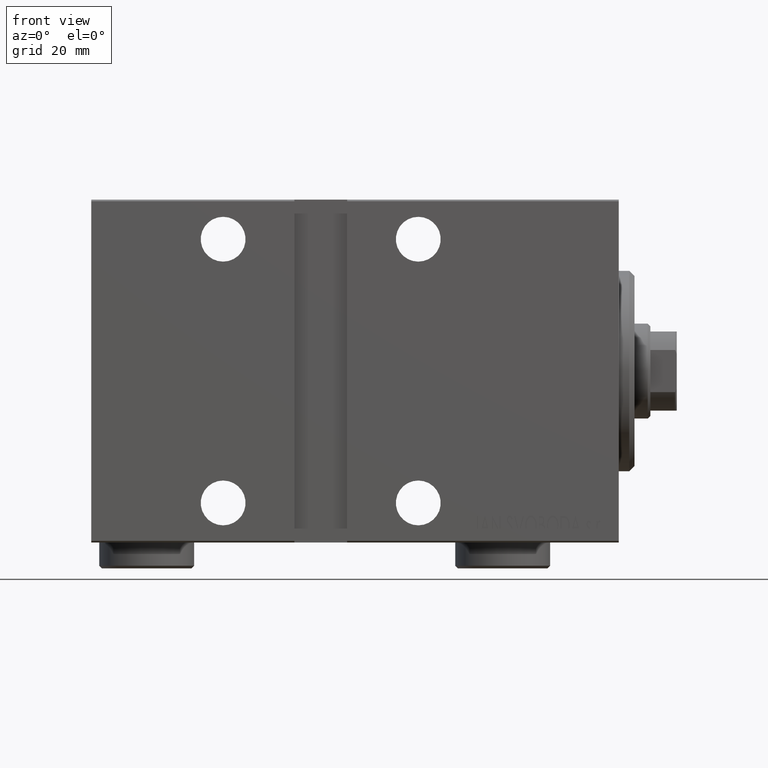
[diagram: clean part render]
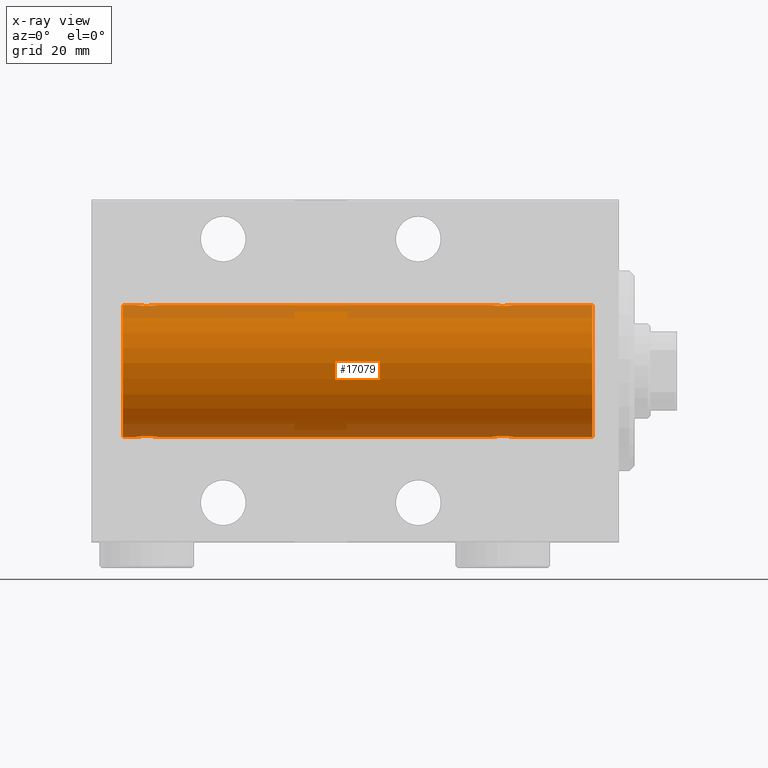
[diagram: x-ray — body ghosted, one internal face saturated and labeled with its STEP entity id]
A machine part, front view, then the same camera in x-ray: the body is ghosted and one INTERNAL B-rep face — a face not visible from any outside direction — is saturated and labeled: STEP entity #17079.
In plain terms, the highlighted cylindrical surface (partial cylindrical patch) has radius 12.5 mm, axis along (1, 0, -0).
Its self-contained STEP definition (entity closure, byte-faithful):
#232 = EDGE_CURVE ( 'NONE', #30984, #15643, #29245, .T. ) ;
#273 = LINE ( 'NONE', #21172, #20135 ) ;
#306 = CARTESIAN_POINT ( 'NONE',  ( 91.50000000000002842, 3.163483401492493339E-15, 12.50000000000000000 ) ) ;
#731 = VERTEX_POINT ( 'NONE', #11067 ) ;
#921 = CARTESIAN_POINT ( 'NONE',  ( 94.00000000000000000, 0.000000000000000000, 0.000000000000000000 ) ) ;
#1170 = EDGE_CURVE ( 'NONE', #35094, #27572, #1565, .T. ) ;
#1565 = LINE ( 'NONE', #28975, #31146 ) ;
#1700 = CARTESIAN_POINT ( 'NONE',  ( 94.00000000000000000, 0.000000000000000000, 12.50000000000000000 ) ) ;
#1787 = DIRECTION ( 'NONE',  ( -1.000000000000000000, -0.000000000000000000, -0.000000000000000000 ) ) ;
#1857 = CARTESIAN_POINT ( 'NONE',  ( 90.14415233770294833, 1.897967064543078619, -12.35517291625592051 ) ) ;
#2033 = ORIENTED_EDGE ( 'NONE', *, *, #232, .T. ) ;
#2080 = CARTESIAN_POINT ( 'NONE',  ( 87.76446744561867774, 1.002494658017143658, -12.46021263690097136 ) ) ;
#2444 = CARTESIAN_POINT ( 'NONE',  ( 24.00000000000000000, 1.530808426277417854E-15, -12.50000000000000000 ) ) ;
#2841 = VECTOR ( 'NONE', #12183, 1000.000000000000000 ) ;
#2935 = CARTESIAN_POINT ( 'NONE',  ( 22.26211806331625098, 1.999901172190677201, 12.33897869807161563 ) ) ;
#3043 = ORIENTED_EDGE ( 'NONE', *, *, #11046, .F. ) ;
#3104 = CARTESIAN_POINT ( 'NONE',  ( 94.00000000000000000, 1.530808498934191521E-15, -12.50000000000000000 ) ) ;
#3372 = CARTESIAN_POINT ( 'NONE',  ( 20.00000000000000000, 0.1306394121199368485, 12.50000000000000178 ) ) ;
#3459 = EDGE_CURVE ( 'NONE', #15643, #5807, #20374, .T. ) ;
#3473 = CARTESIAN_POINT ( 'NONE',  ( 91.29699211628617661, 0.8876934327478118725, 12.46903010196599659 ) ) ;
#3687 = CARTESIAN_POINT ( 'NONE',  ( 91.43604351777365480, 0.5184196815546076031, 12.48990118705761354 ) ) ;
#3914 = CARTESIAN_POINT ( 'NONE',  ( 87.56438225478156312, 0.5201193324741318902, 12.48983485452575337 ) ) ;
#5041 = VERTEX_POINT ( 'NONE', #13899 ) ;
#5169 = LINE ( 'NONE', #25605, #16256 ) ;
#5239 = CARTESIAN_POINT ( 'NONE',  ( 90.38656313533020636, 1.797558627508987428, -12.37018026341339016 ) ) ;
#5807 = VERTEX_POINT ( 'NONE', #35580 ) ;
#5851 = CARTESIAN_POINT ( 'NONE',  ( 23.79699211628617661, 0.8876934327478163134, 12.46903010196599837 ) ) ;
#6028 = CARTESIAN_POINT ( 'NONE',  ( 22.64415233770293412, 1.897967064543090165, -12.35517291625592051 ) ) ;
#6121 = CARTESIAN_POINT ( 'NONE',  ( 94.00000000000000000, 0.000000000000000000, 12.50000000000000000 ) ) ;
#6297 = CARTESIAN_POINT ( 'NONE',  ( 20.99664185700817853, 1.734998657226762830, 12.37922086519035680 ) ) ;
#6738 = CARTESIAN_POINT ( 'NONE',  ( 23.99999999999999645, 0.1323736289504348906, 12.50000000000000000 ) ) ;
#6851 = VERTEX_POINT ( 'NONE', #27830 ) ;
#7005 = EDGE_CURVE ( 'NONE', #17641, #6851, #5169, .T. ) ;
#7074 = ORIENTED_EDGE ( 'NONE', *, *, #42966, .T. ) ;
#7279 = CARTESIAN_POINT ( 'NONE',  ( 88.61343686466992153, 1.797558627508992535, 12.37018026341338839 ) ) ;
#8156 = CARTESIAN_POINT ( 'NONE',  ( 90.50335814299187120, 1.734998657226755947, -12.37922086519035858 ) ) ;
#8376 = CARTESIAN_POINT ( 'NONE',  ( 91.39773031393660574, 0.6448065707252970125, -12.48394649977302429 ) ) ;
#8813 = CARTESIAN_POINT ( 'NONE',  ( 90.01937350851557085, 1.935814255713560472, -12.34922241902463114 ) ) ;
#8837 = ORIENTED_EDGE ( 'NONE', *, *, #22646, .T. ) ;
#9054 = ORIENTED_EDGE ( 'NONE', *, *, #3459, .T. ) ;
#9392 = CARTESIAN_POINT ( 'NONE',  ( 20.49398366327207910, 1.322451657002076120, -12.43019346654084956 ) ) ;
#9433 = CARTESIAN_POINT ( 'NONE',  ( 5.000000000000004441, 1.530808498934191521E-15, -12.50000000000000000 ) ) ;
#9611 = CARTESIAN_POINT ( 'NONE',  ( 23.00335814299181436, 1.734998657226765939, -12.37922086519035325 ) ) ;
#9987 = CARTESIAN_POINT ( 'NONE',  ( 87.50000000000002842, -7.266434456262306043E-23, 12.50000000000000000 ) ) ;
#10065 = CARTESIAN_POINT ( 'NONE',  ( 20.10252270298193622, 0.6455696738844897142, -12.48390768591463207 ) ) ;
#10102 = ORIENTED_EDGE ( 'NONE', *, *, #24039, .F. ) ;
#10207 = CARTESIAN_POINT ( 'NONE',  ( 87.99266449635685206, 1.321095788880532362, 12.43034574091278444 ) ) ;
#10276 = CARTESIAN_POINT ( 'NONE',  ( 24.00000000000000711, 0.1306394121199392910, -12.50000000000000533 ) ) ;
#10325 = CARTESIAN_POINT ( 'NONE',  ( 19.99999999999999645, -7.265724481447607133E-23, 12.50000000000000000 ) ) ;
#10389 = CYLINDRICAL_SURFACE ( 'NONE', #22837, 12.50000000000000000 ) ;
#10423 = CARTESIAN_POINT ( 'NONE',  ( 88.28019209405425727, 1.590288205413970202, 12.39864157855464910 ) ) ;
#10465 = ORIENTED_EDGE ( 'NONE', *, *, #1170, .F. ) ;
#10648 = CARTESIAN_POINT ( 'NONE',  ( 90.50683120447500585, 1.747608771958138352, 12.37764291807175709 ) ) ;
#11046 = EDGE_CURVE ( 'NONE', #19926, #17641, #12751, .T. ) ;
#11067 = CARTESIAN_POINT ( 'NONE',  ( 5.000000000000004441, 0.000000000000000000, 12.50000000000000000 ) ) ;
#11587 = CARTESIAN_POINT ( 'NONE',  ( 24.00000000000000000, -2.019790789754703983E-15, 12.50000000000000000 ) ) ;
#12151 = CARTESIAN_POINT ( 'NONE',  ( 94.00000000000000000, 0.000000000000000000, 12.50000000000000000 ) ) ;
#12168 = CARTESIAN_POINT ( 'NONE',  ( 90.82102833500701422, 1.507394620545632336, -12.40913174964213539 ) ) ;
#12183 = DIRECTION ( 'NONE',  ( -1.000000000000000000, -0.000000000000000000, -0.000000000000000000 ) ) ;
#12391 = CARTESIAN_POINT ( 'NONE',  ( 91.23470742397611843, 1.003863686549164580, -12.46009879577771073 ) ) ;
#12751 = CIRCLE ( 'NONE', #18513, 12.50000000000000000 ) ;
#12843 = CARTESIAN_POINT ( 'NONE',  ( 94.00000000000000000, 0.000000000000000000, 12.50000000000000000 ) ) ;
#13244 = CARTESIAN_POINT ( 'NONE',  ( 21.87007370639734205, 2.000049200055400433, 12.33895470450622867 ) ) ;
#13345 = CARTESIAN_POINT ( 'NONE',  ( 88.49664185700822827, 1.734998657226760832, 12.37922086519036036 ) ) ;
#13423 = CARTESIAN_POINT ( 'NONE',  ( 20.40963319990594016, 1.219754986802279451, -12.44082361696003503 ) ) ;
#13568 = CARTESIAN_POINT ( 'NONE',  ( 88.98062649148445757, 1.935814255713564691, 12.34922241902462758 ) ) ;
#13643 = CARTESIAN_POINT ( 'NONE',  ( 19.99999999999999645, 0.1323736289504319763, -12.50000000000000000 ) ) ;
#13899 = CARTESIAN_POINT ( 'NONE',  ( 91.50000000000002842, 3.163483401492493339E-15, 12.50000000000000000 ) ) ;
#14009 = CARTESIAN_POINT ( 'NONE',  ( 91.09036680009408826, 1.219754986802274344, 12.44082361696003503 ) ) ;
#14449 = CARTESIAN_POINT ( 'NONE',  ( 87.51301208516352403, 0.2624928479599822340, -12.49789934882883458 ) ) ;
#14611 = CARTESIAN_POINT ( 'NONE',  ( 87.50000000000002842, -8.176262823880599614E-15, -12.50000000000000000 ) ) ;
#14647 = DIRECTION ( 'NONE',  ( -1.000000000000000000, -0.000000000000000000, -0.000000000000000000 ) ) ;
#14665 = CARTESIAN_POINT ( 'NONE',  ( 87.60252270298197175, 0.6455696738844840521, -12.48390768591463384 ) ) ;
#14883 = CARTESIAN_POINT ( 'NONE',  ( 87.90963319990596858, 1.219754986802266128, -12.44082361696003503 ) ) ;
#15264 = DIRECTION ( 'NONE',  ( -1.000000000000000000, -0.000000000000000000, -0.000000000000000000 ) ) ;
#15331 = CARTESIAN_POINT ( 'NONE',  ( 88.49316879552503678, 1.747608771958125473, -12.37764291807175709 ) ) ;
#15643 = VERTEX_POINT ( 'NONE', #11587 ) ;
#15775 = CARTESIAN_POINT ( 'NONE',  ( 88.27033506126853979, 1.598680238462352188, -12.39873273758732175 ) ) ;
#16066 = ORIENTED_EDGE ( 'NONE', *, *, #17642, .T. ) ;
#16140 = CARTESIAN_POINT ( 'NONE',  ( 22.51937350851555308, 1.935814255713574905, -12.34922241902463114 ) ) ;
#16181 = CARTESIAN_POINT ( 'NONE',  ( 23.59036680009405629, 1.219754986802283003, 12.44082361696003858 ) ) ;
#16256 = VECTOR ( 'NONE', #1787, 1000.000000000000000 ) ;
#16401 = CARTESIAN_POINT ( 'NONE',  ( 23.93604351777362993, 0.5184196815546091575, 12.48990118705761709 ) ) ;
#16575 = CARTESIAN_POINT ( 'NONE',  ( 23.50733550364322255, 1.321095788880538136, -12.43034574091277911 ) ) ;
#16618 = CARTESIAN_POINT ( 'NONE',  ( 21.73730537545401731, 1.986986967296538120, 12.34109209020652642 ) ) ;
#16795 = CARTESIAN_POINT ( 'NONE',  ( 19.99999999999999645, -3.966047509268588167E-15, -12.50000000000000000 ) ) ;
#16840 = CARTESIAN_POINT ( 'NONE',  ( 23.73553255438137555, 1.002494658017160090, 12.46021263690097491 ) ) ;
#16906 = DIRECTION ( 'NONE',  ( 0.000000000000000000, 0.000000000000000000, 1.000000000000000000 ) ) ;
#17015 = B_SPLINE_CURVE_WITH_KNOTS ( 'NONE', 3,
 ( #16795, #13643, #37250, #37024, #10065, #19500, #36794, #13423, #9392, #37467, #40395, #33226, #33884, #40622, #41065, #16140, #6028, #30283, #9611, #40176, #26475, #16575, #27356, #30505, #19946, #33445, #26911, #23980, #10276, #2444 ),
 .UNSPECIFIED., .F., .F.,
 ( 4, 2, 2, 2, 2, 2, 2, 2, 2, 2, 2, 2, 2, 2, 4 ),
 ( 3.611342868676865251E-19, 0.0003914362731607586585, 0.0007828725463215168833, 0.001174308819482275217, 0.001565745092643033550, 0.002348617638964549999, 0.003131490185286066666, 0.003522926458446830420, 0.003914362731607594174, 0.004305799004768357495, 0.004697235277929121683, 0.005088671551089885003, 0.005480107824250649191, 0.005871544097411412512, 0.006262980370572176700 ),
 .UNSPECIFIED. ) ;
#17079 = ADVANCED_FACE ( 'NONE', ( #30172 ), #10389, .F. ) ;
#17167 = CARTESIAN_POINT ( 'NONE',  ( 87.91008591319375398, 1.220297236145715614, 12.44076681548080821 ) ) ;
#17387 = CARTESIAN_POINT ( 'NONE',  ( 89.76211806331626519, 1.999901172190670762, 12.33897869807161385 ) ) ;
#17525 = CARTESIAN_POINT ( 'NONE',  ( 5.000000000000004441, 0.000000000000000000, 0.000000000000000000 ) ) ;
#17641 = VERTEX_POINT ( 'NONE', #3104 ) ;
#17642 = EDGE_CURVE ( 'NONE', #35094, #41477, #17015, .T. ) ;
#17825 = CARTESIAN_POINT ( 'NONE',  ( 87.50000000000002842, 0.1323736289504252872, -12.50000000000000178 ) ) ;
#17841 = CARTESIAN_POINT ( 'NONE',  ( 89.23730537545408481, 1.986986967296531015, 12.34109209020653353 ) ) ;
#18208 = CARTESIAN_POINT ( 'NONE',  ( 24.00000000000000000, 1.530808426277417854E-15, -12.50000000000000000 ) ) ;
#18513 = AXIS2_PLACEMENT_3D ( 'NONE', #921, #22030, #25626 ) ;
#18676 = ORIENTED_EDGE ( 'NONE', *, *, #27313, .T. ) ;
#19500 = CARTESIAN_POINT ( 'NONE',  ( 20.20300788371381273, 0.8876934327478117615, -12.46903010196599304 ) ) ;
#19539 = CARTESIAN_POINT ( 'NONE',  ( 23.50601633672791380, 1.322451657002079450, 12.43019346654085133 ) ) ;
#19765 = CARTESIAN_POINT ( 'NONE',  ( 20.01309615233744665, 0.2633501011236107914, 12.49788564268284041 ) ) ;
#19926 = VERTEX_POINT ( 'NONE', #1700 ) ;
#19946 = CARTESIAN_POINT ( 'NONE',  ( 23.79742491916155700, 0.8868029758979399935, -12.46909283808506430 ) ) ;
#19991 = CARTESIAN_POINT ( 'NONE',  ( 23.22966493873148863, 1.598680238462371284, 12.39873273758732175 ) ) ;
#20135 = VECTOR ( 'NONE', #14647, 1000.000000000000000 ) ;
#20170 = EDGE_CURVE ( 'NONE', #5041, #30984, #37264, .T. ) ;
#20374 = B_SPLINE_CURVE_WITH_KNOTS ( 'NONE', 3,
 ( #25852, #6738, #27183, #16401, #26958, #5851, #16840, #16181, #19539, #19991, #43601, #23360, #2935, #13244, #16618, #23808, #20434, #33713, #6297, #40440, #37066, #34148, #30112, #40665, #33928, #27404, #30329, #19765, #3372, #10325 ),
 .UNSPECIFIED., .F., .F.,
 ( 4, 2, 2, 2, 2, 2, 2, 2, 2, 2, 2, 2, 2, 2, 4 ),
 ( 3.101773669235365923E-18, 0.0003914362731607605559, 0.0007828725463215181844, 0.001174308819482275650, 0.001565745092643033550, 0.002348617638964548265, 0.003131490185286063196, 0.003522926458446825216, 0.003914362731607588103, 0.004305799004768350556, 0.004697235277929112142, 0.005088671551089875462, 0.005480107824250637048, 0.005871544097411400369, 0.006262980370572162822 ),
 .UNSPECIFIED. ) ;
#20434 = CARTESIAN_POINT ( 'NONE',  ( 21.35584766229707654, 1.897967064543088389, 12.35517291625592406 ) ) ;
#20441 = EDGE_CURVE ( 'NONE', #5807, #731, #40267, .T. ) ;
#20758 = CARTESIAN_POINT ( 'NONE',  ( 87.70257508083849984, 0.8868029758979321109, 12.46909283808506430 ) ) ;
#20976 = CARTESIAN_POINT ( 'NONE',  ( 87.60226968606343689, 0.6448065707252962353, 12.48394649977302429 ) ) ;
#21172 = CARTESIAN_POINT ( 'NONE',  ( 94.00000000000000000, 1.530808498934191521E-15, -12.50000000000000000 ) ) ;
#21853 = CARTESIAN_POINT ( 'NONE',  ( 91.48690384766258887, 0.2633501011236116240, -12.49788564268284041 ) ) ;
#22030 = DIRECTION ( 'NONE',  ( -1.000000000000000000, 0.000000000000000000, 0.000000000000000000 ) ) ;
#22059 = B_SPLINE_CURVE_WITH_KNOTS ( 'NONE', 3,
 ( #34902, #17825, #14449, #41871, #14665, #25010, #2080, #14883, #25675, #15775, #15331, #35557, #36431, #42977, #38934, #8813, #1857, #5239, #8156, #22291, #12168, #28824, #29478, #12391, #42758, #8376, #25888, #21853, #31970, #43193 ),
 .UNSPECIFIED., .F., .F.,
 ( 4, 2, 2, 2, 2, 2, 2, 2, 2, 2, 2, 2, 2, 2, 4 ),
 ( 1.893746017792005895E-18, 0.0003914362731607732410, 0.0007828725463215445305, 0.001174308819482315983, 0.001565745092643087326, 0.002348617638964600740, 0.003131490185286113937, 0.003522926458446871186, 0.003914362731607627134, 0.004305799004768384383, 0.004697235277929140765, 0.005088671551089898014, 0.005480107824250654396, 0.005871544097411410777, 0.006262980370572168026 ),
 .UNSPECIFIED. ) ;
#22291 = CARTESIAN_POINT ( 'NONE',  ( 90.71980790594582800, 1.590288205413965539, -12.39864157855464732 ) ) ;
#22646 = EDGE_CURVE ( 'NONE', #22815, #6851, #22059, .T. ) ;
#22815 = VERTEX_POINT ( 'NONE', #14611 ) ;
#22837 = AXIS2_PLACEMENT_3D ( 'NONE', #40505, #24097, #16906 ) ;
#23360 = CARTESIAN_POINT ( 'NONE',  ( 22.52563587170489612, 1.947190906025044521, 12.34781876294798586 ) ) ;
#23686 = CARTESIAN_POINT ( 'NONE',  ( 88.17897166499305683, 1.507394620545633890, 12.40913174964213539 ) ) ;
#23808 = CARTESIAN_POINT ( 'NONE',  ( 21.48062649148445047, 1.935814255713572019, 12.34922241902463469 ) ) ;
#23980 = CARTESIAN_POINT ( 'NONE',  ( 23.98690384766256400, 0.2633501011236120681, -12.49788564268284041 ) ) ;
#24039 = EDGE_CURVE ( 'NONE', #22815, #41477, #273, .T. ) ;
#24097 = DIRECTION ( 'NONE',  ( -1.000000000000000000, -0.000000000000000000, -0.000000000000000000 ) ) ;
#24131 = CARTESIAN_POINT ( 'NONE',  ( 91.39747729701809931, 0.6455696738844914906, 12.48390768591463384 ) ) ;
#24711 = VECTOR ( 'NONE', #42955, 1000.000000000000000 ) ;
#24828 = AXIS2_PLACEMENT_3D ( 'NONE', #17525, #31235, #38857 ) ;
#25010 = CARTESIAN_POINT ( 'NONE',  ( 87.70300788371382339, 0.8876934327478049891, -12.46903010196599659 ) ) ;
#25605 = CARTESIAN_POINT ( 'NONE',  ( 94.00000000000000000, 1.530808498934191521E-15, -12.50000000000000000 ) ) ;
#25626 = DIRECTION ( 'NONE',  ( 0.000000000000000000, 0.000000000000000000, 1.000000000000000000 ) ) ;
#25675 = CARTESIAN_POINT ( 'NONE',  ( 87.99398366327214660, 1.322451657002059910, -12.43019346654085666 ) ) ;
#25852 = CARTESIAN_POINT ( 'NONE',  ( 24.00000000000000000, -2.019790789754703983E-15, 12.50000000000000000 ) ) ;
#25888 = CARTESIAN_POINT ( 'NONE',  ( 91.43561774521855057, 0.5201193324741325563, -12.48983485452575337 ) ) ;
#26475 = CARTESIAN_POINT ( 'NONE',  ( 23.32102833500698225, 1.507394620545640773, -12.40913174964213184 ) ) ;
#26911 = CARTESIAN_POINT ( 'NONE',  ( 23.93561774521849728, 0.5201193324741352209, -12.48983485452574982 ) ) ;
#26958 = CARTESIAN_POINT ( 'NONE',  ( 23.89747729701804957, 0.6455696738844942661, 12.48390768591463207 ) ) ;
#27007 = ORIENTED_EDGE ( 'NONE', *, *, #20441, .T. ) ;
#27060 = CARTESIAN_POINT ( 'NONE',  ( 91.48698791483656123, 0.2624928479599940023, 12.49789934882883458 ) ) ;
#27183 = CARTESIAN_POINT ( 'NONE',  ( 23.98698791483651149, 0.2624928479599948905, 12.49789934882883458 ) ) ;
#27279 = CARTESIAN_POINT ( 'NONE',  ( 88.85584766229712272, 1.897967064543083948, 12.35517291625591874 ) ) ;
#27313 = EDGE_CURVE ( 'NONE', #19926, #5041, #30152, .T. ) ;
#27356 = CARTESIAN_POINT ( 'NONE',  ( 23.58991408680628155, 1.220297236145721609, -12.44076681548080288 ) ) ;
#27404 = CARTESIAN_POINT ( 'NONE',  ( 20.10226968606341202, 0.6448065707252997880, 12.48394649977302073 ) ) ;
#27572 = VERTEX_POINT ( 'NONE', #9433 ) ;
#27725 = CARTESIAN_POINT ( 'NONE',  ( 90.72966493873154548, 1.598680238462358627, 12.39873273758731997 ) ) ;
#27739 = ORIENTED_EDGE ( 'NONE', *, *, #7005, .F. ) ;
#27830 = CARTESIAN_POINT ( 'NONE',  ( 91.50000000000002842, 1.530808426270318106E-15, -12.50000000000000000 ) ) ;
#27933 = ORIENTED_EDGE ( 'NONE', *, *, #20170, .T. ) ;
#28824 = CARTESIAN_POINT ( 'NONE',  ( 91.00733550364326163, 1.321095788880530364, -12.43034574091278444 ) ) ;
#28975 = CARTESIAN_POINT ( 'NONE',  ( 94.00000000000000000, 1.530808498934191521E-15, -12.50000000000000000 ) ) ;
#29245 = LINE ( 'NONE', #12151, #24711 ) ;
#29478 = CARTESIAN_POINT ( 'NONE',  ( 91.08991408680633128, 1.220297236145713393, -12.44076681548080821 ) ) ;
#30086 = CARTESIAN_POINT ( 'NONE',  ( 19.99999999999999645, -3.966047509268588167E-15, -12.50000000000000000 ) ) ;
#30112 = CARTESIAN_POINT ( 'NONE',  ( 20.41008591319372201, 1.220297236145719610, 12.44076681548080465 ) ) ;
#30152 = LINE ( 'NONE', #12843, #31734 ) ;
#30172 = FACE_OUTER_BOUND ( 'NONE', #39184, .T. ) ;
#30283 = CARTESIAN_POINT ( 'NONE',  ( 22.88656313533016373, 1.797558627508998086, -12.37018026341338839 ) ) ;
#30329 = CARTESIAN_POINT ( 'NONE',  ( 20.06438225478150272, 0.5201193324741336665, 12.48983485452574982 ) ) ;
#30505 = CARTESIAN_POINT ( 'NONE',  ( 23.73470742397611843, 1.003863686549172352, -12.46009879577771606 ) ) ;
#30984 = VERTEX_POINT ( 'NONE', #37911 ) ;
#31146 = VECTOR ( 'NONE', #15264, 1000.000000000000000 ) ;
#31235 = DIRECTION ( 'NONE',  ( -1.000000000000000000, 0.000000000000000000, 0.000000000000000000 ) ) ;
#31550 = CARTESIAN_POINT ( 'NONE',  ( 87.51309615233751060, 0.2633501011236108469, 12.49788564268284041 ) ) ;
#31734 = VECTOR ( 'NONE', #43648, 1000.000000000000000 ) ;
#31970 = CARTESIAN_POINT ( 'NONE',  ( 91.50000000000005684, 0.1306394121199379033, -12.50000000000000355 ) ) ;
#33226 = CARTESIAN_POINT ( 'NONE',  ( 21.47436412829510033, 1.947190906025044077, -12.34781876294798053 ) ) ;
#33445 = CARTESIAN_POINT ( 'NONE',  ( 23.89773031393658087, 0.6448065707253023415, -12.48394649977302073 ) ) ;
#33713 = CARTESIAN_POINT ( 'NONE',  ( 21.11343686466983982, 1.797558627508994533, 12.37018026341338484 ) ) ;
#33884 = CARTESIAN_POINT ( 'NONE',  ( 21.73788193668374902, 1.999901172190678533, -12.33897869807161385 ) ) ;
#33928 = CARTESIAN_POINT ( 'NONE',  ( 20.20257508083844300, 0.8868029758979374400, 12.46909283808506252 ) ) ;
#34148 = CARTESIAN_POINT ( 'NONE',  ( 20.49266449635678100, 1.321095788880536137, 12.43034574091278266 ) ) ;
#34466 = CARTESIAN_POINT ( 'NONE',  ( 87.50000000000005684, 0.1306394121199364600, 12.50000000000000355 ) ) ;
#34688 = CARTESIAN_POINT ( 'NONE',  ( 91.00601633672795288, 1.322451657002065906, 12.43019346654085489 ) ) ;
#34902 = CARTESIAN_POINT ( 'NONE',  ( 87.50000000000002842, -8.176262823880599614E-15, -12.50000000000000000 ) ) ;
#35094 = VERTEX_POINT ( 'NONE', #30086 ) ;
#35557 = CARTESIAN_POINT ( 'NONE',  ( 88.97436412829512165, 1.947190906025030976, -12.34781876294798408 ) ) ;
#35566 = CIRCLE ( 'NONE', #24828, 12.50000000000000000 ) ;
#35580 = CARTESIAN_POINT ( 'NONE',  ( 19.99999999999999645, -7.265724481447607133E-23, 12.50000000000000000 ) ) ;
#36431 = CARTESIAN_POINT ( 'NONE',  ( 89.23788193668380586, 1.999901172190666765, -12.33897869807161385 ) ) ;
#36794 = CARTESIAN_POINT ( 'NONE',  ( 20.26446744561862801, 1.002494658017155871, -12.46021263690096958 ) ) ;
#37024 = CARTESIAN_POINT ( 'NONE',  ( 20.06395648222636652, 0.5184196815546032733, -12.48990118705761532 ) ) ;
#37066 = CARTESIAN_POINT ( 'NONE',  ( 20.67897166499301775, 1.507394620545638997, 12.40913174964213717 ) ) ;
#37250 = CARTESIAN_POINT ( 'NONE',  ( 20.01301208516349206, 0.2624928479599882847, -12.49789934882883458 ) ) ;
#37264 = B_SPLINE_CURVE_WITH_KNOTS ( 'NONE', 3,
 ( #306, #37391, #27060, #3687, #24131, #3473, #41435, #14009, #34688, #27725, #10648, #44371, #17387, #38062, #17841, #13568, #27279, #7279, #13345, #10423, #23686, #10207, #17167, #40761, #20758, #20976, #3914, #31550, #34466, #9987 ),
 .UNSPECIFIED., .F., .F.,
 ( 4, 2, 2, 2, 2, 2, 2, 2, 2, 2, 2, 2, 2, 2, 4 ),
 ( 3.073563828301030308E-18, 0.0003914362731607732952, 0.0007828725463215434463, 0.001174308819482313597, 0.001565745092643083857, 0.002348617638964595102, 0.003131490185286106131, 0.003522926458446862079, 0.003914362731607617593, 0.004305799004768373107, 0.004697235277929129489, 0.005088671551089885003, 0.005480107824250639650, 0.005871544097411396032, 0.006262980370572151546 ),
 .UNSPECIFIED. ) ;
#37391 = CARTESIAN_POINT ( 'NONE',  ( 91.50000000000002842, 0.1323736289504353347, 12.50000000000000178 ) ) ;
#37467 = CARTESIAN_POINT ( 'NONE',  ( 20.77033506126850426, 1.598680238462369951, -12.39873273758732175 ) ) ;
#37911 = CARTESIAN_POINT ( 'NONE',  ( 87.50000000000002842, -7.266434456262306043E-23, 12.50000000000000000 ) ) ;
#38062 = CARTESIAN_POINT ( 'NONE',  ( 89.37007370639736337, 2.000049200055392440, 12.33895470450622689 ) ) ;
#38857 = DIRECTION ( 'NONE',  ( 0.000000000000000000, 0.000000000000000000, 1.000000000000000000 ) ) ;
#38934 = CARTESIAN_POINT ( 'NONE',  ( 89.76269462454600045, 1.986986967296526352, -12.34109209020653530 ) ) ;
#39184 = EDGE_LOOP ( 'NONE', ( #27739, #3043, #18676, #27933, #2033, #9054, #27007, #7074, #10465, #16066, #10102, #8837 ) ) ;
#40176 = CARTESIAN_POINT ( 'NONE',  ( 23.21980790594580313, 1.590288205413975309, -12.39864157855465088 ) ) ;
#40267 = LINE ( 'NONE', #6121, #2841 ) ;
#40395 = CARTESIAN_POINT ( 'NONE',  ( 20.99316879552500481, 1.747608771958139906, -12.37764291807175354 ) ) ;
#40440 = CARTESIAN_POINT ( 'NONE',  ( 20.78019209405420042, 1.590288205413970646, 12.39864157855464910 ) ) ;
#40505 = CARTESIAN_POINT ( 'NONE',  ( 94.00000000000000000, 0.000000000000000000, 0.000000000000000000 ) ) ;
#40622 = CARTESIAN_POINT ( 'NONE',  ( 22.12992629360264729, 2.000049200055402210, -12.33895470450623044 ) ) ;
#40665 = CARTESIAN_POINT ( 'NONE',  ( 20.26529257602388867, 1.003863686549170353, 12.46009879577771429 ) ) ;
#40761 = CARTESIAN_POINT ( 'NONE',  ( 87.76529257602393841, 1.003863686549167245, 12.46009879577771073 ) ) ;
#41065 = CARTESIAN_POINT ( 'NONE',  ( 22.26269462454597914, 1.986986967296540119, -12.34109209020652465 ) ) ;
#41435 = CARTESIAN_POINT ( 'NONE',  ( 91.23553255438137910, 1.002494658017152318, 12.46021263690097136 ) ) ;
#41477 = VERTEX_POINT ( 'NONE', #18208 ) ;
#41871 = CARTESIAN_POINT ( 'NONE',  ( 87.56395648222640204, 0.5184196815545968340, -12.48990118705761354 ) ) ;
#42758 = CARTESIAN_POINT ( 'NONE',  ( 91.29742491916158542, 0.8868029758979329991, -12.46909283808506430 ) ) ;
#42955 = DIRECTION ( 'NONE',  ( -1.000000000000000000, -0.000000000000000000, -0.000000000000000000 ) ) ;
#42966 = EDGE_CURVE ( 'NONE', #731, #27572, #35566, .T. ) ;
#42977 = CARTESIAN_POINT ( 'NONE',  ( 89.62992629360266506, 2.000049200055388443, -12.33895470450623044 ) ) ;
#43193 = CARTESIAN_POINT ( 'NONE',  ( 91.50000000000002842, 1.530808426270318106E-15, -12.50000000000000000 ) ) ;
#43601 = CARTESIAN_POINT ( 'NONE',  ( 23.00683120447498808, 1.747608771958142793, 12.37764291807175709 ) ) ;
#43648 = DIRECTION ( 'NONE',  ( -1.000000000000000000, -0.000000000000000000, -0.000000000000000000 ) ) ;
#44371 = CARTESIAN_POINT ( 'NONE',  ( 90.02563587170492099, 1.947190906025039858, 12.34781876294798764 ) ) ;